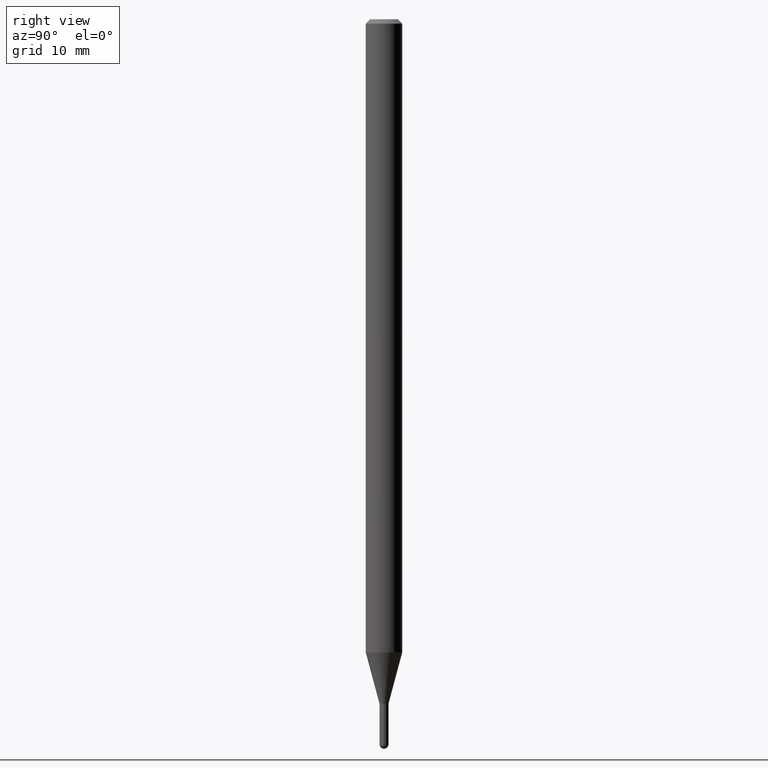
[diagram: clean part render]
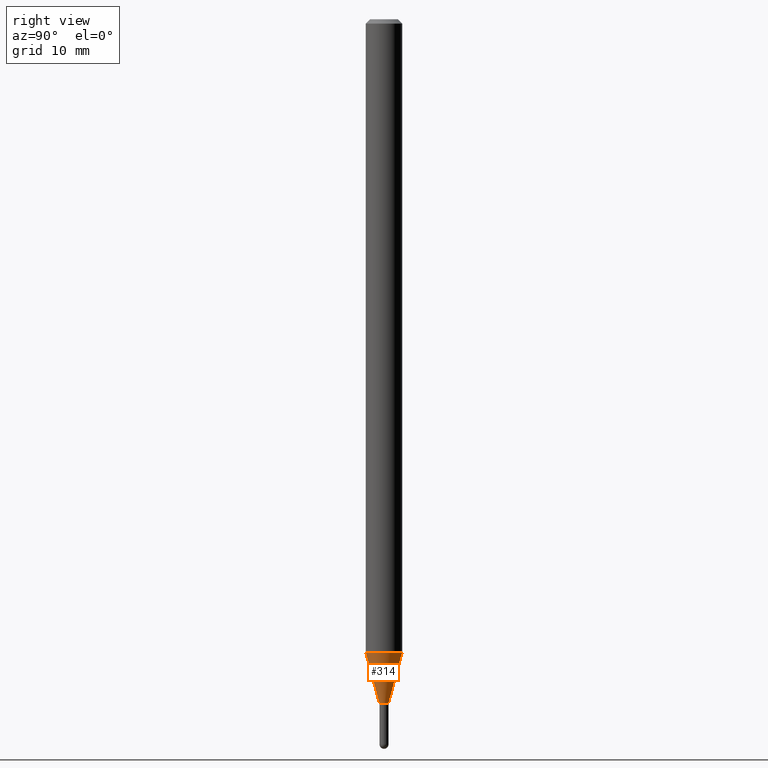
[diagram: same view with one face highlighted and labeled with its STEP entity id]
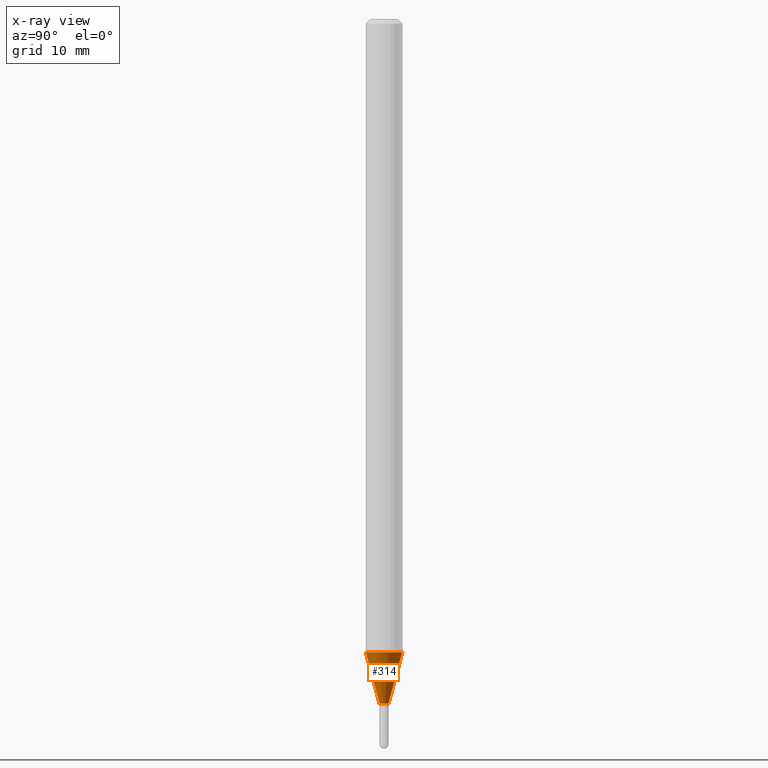
[diagram: x-ray of the same camera — body ghosted, the highlighted face saturated]
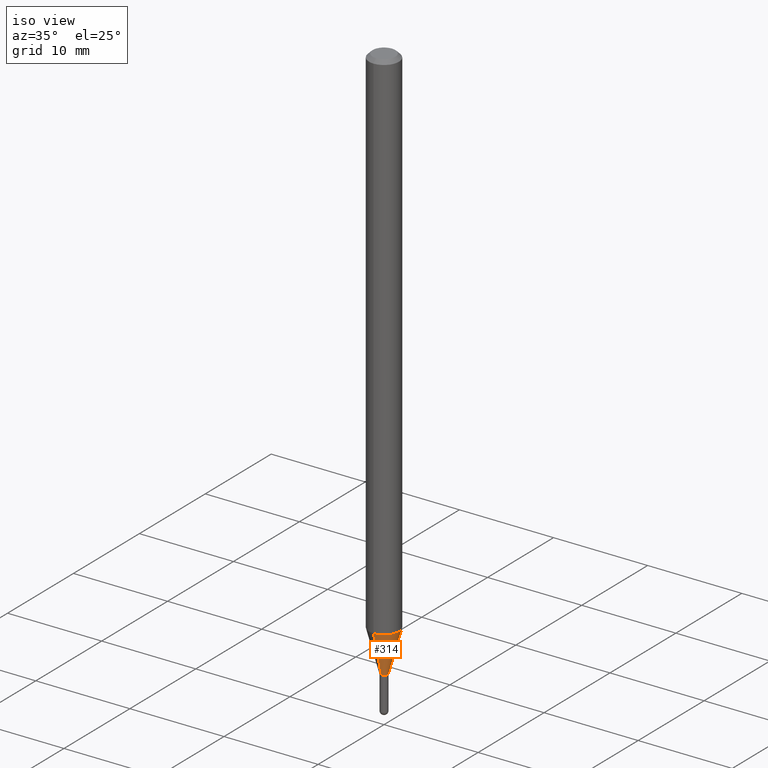
[diagram: same view with one face highlighted and labeled with its STEP entity id]
A machine part, right view. The second image highlights one B-rep face of the part: STEP entity #314.
The next image is the same camera in x-ray: the body ghosted, the highlighted face saturated — about 0% of this face is hidden behind the body in this view.
A second angle (iso view) of the same face is appended — the face is thin or edge-on in the first view.
In plain terms, the highlighted conical surface has half-angle 15 deg.
Its self-contained STEP definition (entity closure, byte-faithful):
#13 = DIRECTION ( 'NONE',  ( -2.445469596993278567E-29, 3.491480206360876224E-15, 1.000000000000000000 ) ) ;
#29 = CARTESIAN_POINT ( 'NONE',  ( -1.082359215040773354E-16, -0.01550000000000783910, -2.345000000000000195 ) ) ;
#56 = ORIENTED_EDGE ( 'NONE', *, *, #310, .T. ) ;
#123 = CARTESIAN_POINT ( 'NONE',  ( 5.734626204949238738E-29, -8.187521083916256548E-15, -2.345000000000000195 ) ) ;
#149 = ORIENTED_EDGE ( 'NONE', *, *, #299, .F. ) ;
#153 = DIRECTION ( 'NONE',  ( -6.982962677686265922E-15, -1.000000000000000000, 4.370956789862821150E-15 ) ) ;
#159 = DIRECTION ( 'NONE',  ( -6.982962677686265922E-15, -1.000000000000000000, 0.000000000000000000 ) ) ;
#186 = EDGE_CURVE ( 'NONE', #509, #251, #293, .T. ) ;
#204 = VECTOR ( 'NONE', #426, 39.37007874015748143 ) ;
#228 = CIRCLE ( 'NONE', #495, 0.01549999999999965121 ) ;
#229 = CARTESIAN_POINT ( 'NONE',  ( 5.305675216085086761E-29, -7.575093152299557168E-15, -2.169593612044267594 ) ) ;
#241 = CARTESIAN_POINT ( 'NONE',  ( 1.101341240428703908E-16, 0.01549999999999146505, -2.345000000000000195 ) ) ;
#246 = DIRECTION ( 'NONE',  ( 1.839019923739650408E-15, 0.2588190451025320082, 0.9659258262890650926 ) ) ;
#251 = VERTEX_POINT ( 'NONE', #352 ) ;
#261 = AXIS2_PLACEMENT_3D ( 'NONE', #123, #13, #159 ) ;
#274 = CARTESIAN_POINT ( 'NONE',  ( -1.082359215040773354E-16, -0.01550000000000783910, -2.345000000000000195 ) ) ;
#291 = CARTESIAN_POINT ( 'NONE',  ( -4.364351673553386678E-16, -0.06250000000000759115, -2.169593612044267150 ) ) ;
#293 = LINE ( 'NONE', #241, #373 ) ;
#299 = EDGE_CURVE ( 'NONE', #380, #304, #467, .T. ) ;
#300 = ORIENTED_EDGE ( 'NONE', *, *, #186, .T. ) ;
#304 = VERTEX_POINT ( 'NONE', #291 ) ;
#310 = EDGE_CURVE ( 'NONE', #380, #509, #228, .T. ) ;
#314 = ADVANCED_FACE ( 'NONE', ( #447 ), #395, .T. ) ;
#315 = CARTESIAN_POINT ( 'NONE',  ( 2.771116669464931584E-16, 0.01549999999999146505, -2.345000000000000195 ) ) ;
#320 = CIRCLE ( 'NONE', #404, 0.06250000000000000000 ) ;
#332 = CARTESIAN_POINT ( 'NONE',  ( 5.734626204949238738E-29, -8.187521083916256548E-15, -2.345000000000000195 ) ) ;
#347 = ORIENTED_EDGE ( 'NONE', *, *, #377, .F. ) ;
#352 = CARTESIAN_POINT ( 'NONE',  ( 4.440892098501153712E-16, 0.06249999999999240191, -2.169593612044267594 ) ) ;
#359 = DIRECTION ( 'NONE',  ( -2.445469596993278567E-29, 3.491480206360876224E-15, 1.000000000000000000 ) ) ;
#373 = VECTOR ( 'NONE', #246, 39.37007874015748854 ) ;
#377 = EDGE_CURVE ( 'NONE', #304, #251, #320, .T. ) ;
#380 = VERTEX_POINT ( 'NONE', #29 ) ;
#395 = CONICAL_SURFACE ( 'NONE', #261, 0.01549999999999965121, 0.2617993877991576235 ) ;
#404 = AXIS2_PLACEMENT_3D ( 'NONE', #229, #425, #153 ) ;
#406 = DIRECTION ( 'NONE',  ( -6.982962677686265922E-15, -1.000000000000000000, 0.000000000000000000 ) ) ;
#425 = DIRECTION ( 'NONE',  ( -2.445469596993278567E-29, 3.491480206360876224E-15, 1.000000000000000000 ) ) ;
#426 = DIRECTION ( 'NONE',  ( -1.807323732225379838E-15, -0.2588190451025252914, 0.9659258262890670910 ) ) ;
#447 = FACE_OUTER_BOUND ( 'NONE', #481, .T. ) ;
#467 = LINE ( 'NONE', #274, #204 ) ;
#481 = EDGE_LOOP ( 'NONE', ( #56, #300, #347, #149 ) ) ;
#495 = AXIS2_PLACEMENT_3D ( 'NONE', #332, #359, #406 ) ;
#509 = VERTEX_POINT ( 'NONE', #315 ) ;